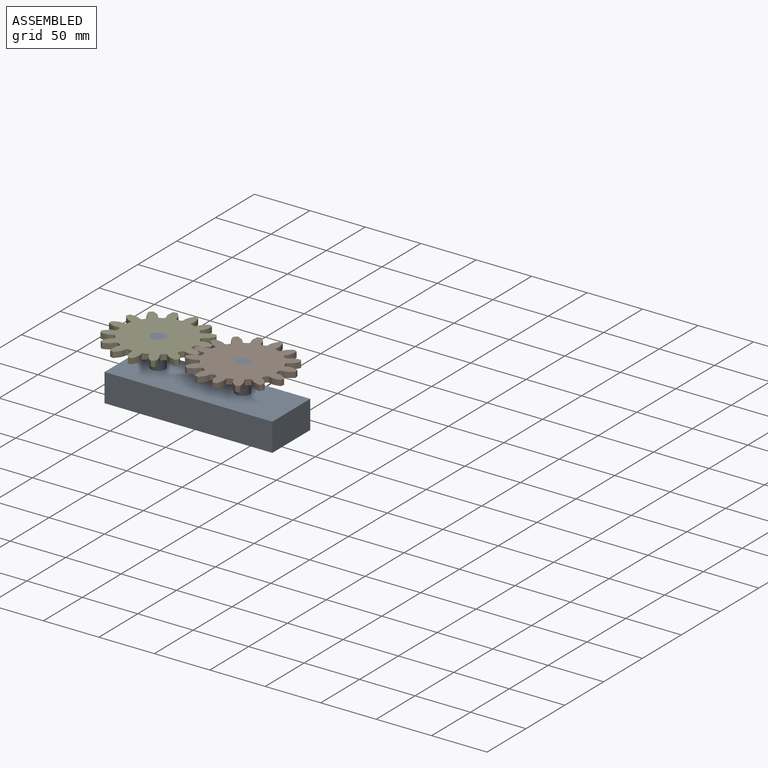
[diagram: assembled view]
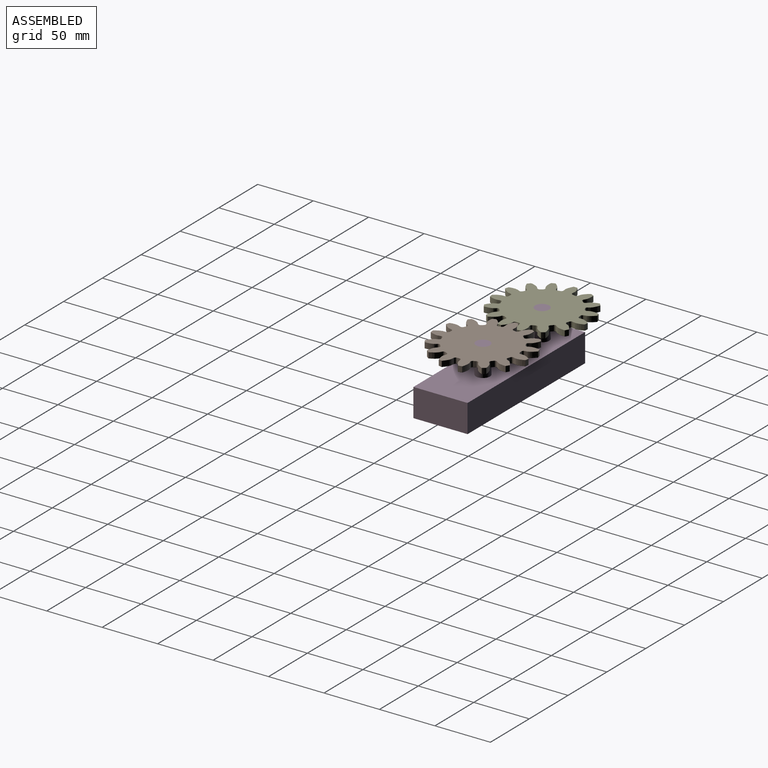
[diagram: assembled view, second angle]
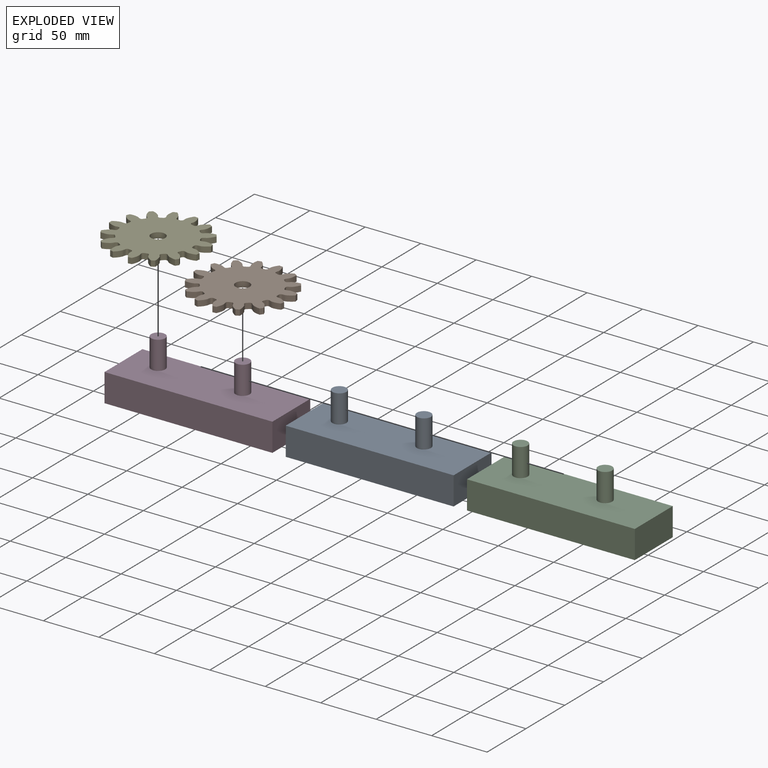
[diagram: exploded view]
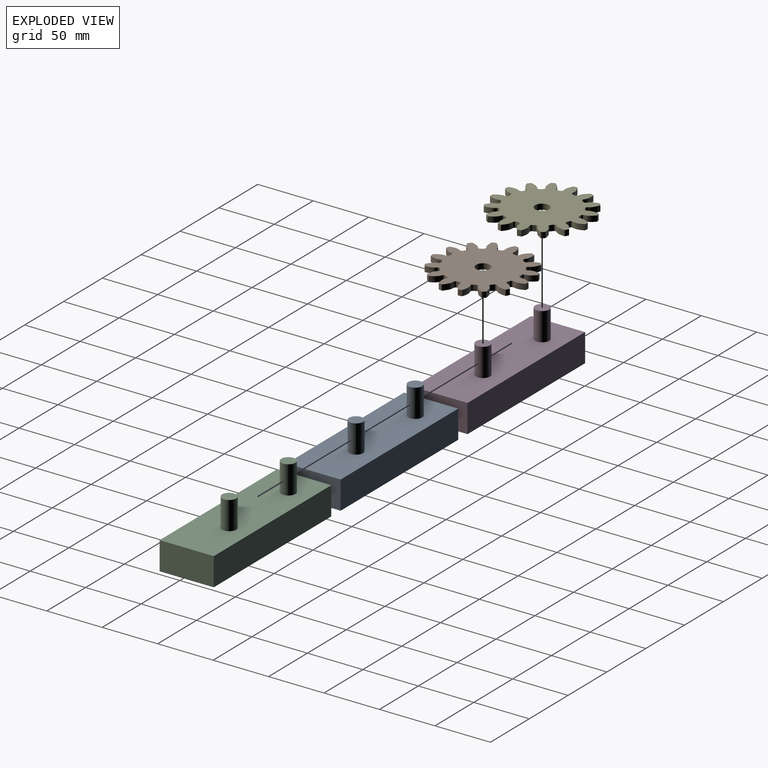
[diagram: exploded view, second angle]
ASSEMBLY  parts=5 mates=2
PART A: 10 faces, bbox 151.4x48.8x50.8 mm
  f0: plane 48.82x25.4mm, normal (-1,0,0), area 1239.9mm2, adj f1,f3,f4,f5
  f1: plane 151.35x25.4mm, normal (0,-1,0), area 3844.3mm2, adj f0,f2,f4,f5
  f2: plane 48.82x25.4mm, normal (1,0,0), area 1239.9mm2, adj f1,f3,f4,f5
  f3: plane 151.35x25.4mm, normal (0,1,0), area 3844.3mm2, adj f0,f2,f4,f5
  f4: plane 151.35x48.82mm, normal (0,0,1), area 7135mm2, adj f0,f1,f2,f3,f6,f8
  f5: plane 151.35x48.82mm, normal (0,0,-1), area 7388.4mm2, adj f0,f1,f2,f3
  f6: cylinder r=6.35mm len=25.4mm, axis (0,0,-1), area 1013.4mm2, adj f4,f7
  f7: plane 12.7x12.7mm, normal (0,0,1), area 126.7mm2, adj f6
  f8: cylinder r=6.35mm len=25.4mm, axis (0,0,-1), area 1013.4mm2, adj f4,f9
  f9: plane 12.7x12.7mm, normal (0,0,1), area 126.7mm2, adj f8
PART B: 93 faces, bbox 85.8x5.1x86.3 mm
  f0: extruded ~9.09x5.08mm, area 52.5mm2, adj f60,f61,f62,f63
  f1: cylinder r=31.75mm len=5.08mm, axis (0,1,0), area 10.7mm2, adj f61,f62,f63,f64
  f2: extruded ~9.09x5.08mm, area 52.5mm2, adj f3,f61,f62,f64
  f3: cylinder r=43.18mm len=5.08mm, axis (0,1,0), area 16.9mm2, adj f2,f4,f61,f62
  f4: extruded ~10.07x5.08mm, area 52.5mm2, adj f3,f61,f62,f65
  f5: cylinder r=31.75mm len=5.08mm, axis (0,1,0), area 10.7mm2, adj f61,f62,f65,f66
  f6: extruded ~7.66x6.54mm, area 52.5mm2, adj f7,f61,f62,f66
  f7: cylinder r=43.18mm len=5.08mm, axis (0,1,0), area 16.9mm2, adj f6,f8,f61,f62
  f8: extruded ~9.3x5.08mm, area 52.5mm2, adj f7,f61,f62,f67
  f9: cylinder r=31.75mm len=5.08mm, axis (0,1,0), area 10.7mm2, adj f61,f62,f67,f68
  f10: extruded ~9.65x5.08mm, area 52.5mm2, adj f11,f61,f62,f68
  f11: cylinder r=43.18mm len=5.08mm, axis (0,1,0), area 16.9mm2, adj f10,f12,f61,f62
  f12: extruded ~7.3x6.93mm, area 52.5mm2, adj f11,f61,f62,f69
  f13: cylinder r=31.75mm len=5.08mm, axis (0,1,0), area 10.7mm2, adj f61,f62,f69,f70
  f14: extruded ~9.98x5.08mm, area 52.5mm2, adj f15,f61,f62,f70
  f15: cylinder r=43.18mm len=5.08mm, axis (0,1,0), area 16.9mm2, adj f14,f16,f61,f62
  f16: extruded ~9.49x5.08mm, area 52.5mm2, adj f15,f61,f62,f71
  f17: cylinder r=31.75mm len=5.08mm, axis (0,1,0), area 10.7mm2, adj f61,f62,f71,f72
  f18: extruded ~8.58x5.26mm, area 52.5mm2, adj f19,f61,f62,f72
  f19: cylinder r=43.18mm len=5.08mm, axis (0,1,0), area 16.9mm2, adj f18,f20,f61,f62
  f20: extruded ~10.04x5.08mm, area 52.5mm2, adj f19,f61,f62,f73
  f21: cylinder r=31.75mm len=5.08mm, axis (0,1,0), area 10.7mm2, adj f61,f62,f73,f74
  f22: extruded ~8.3x5.7mm, area 52.5mm2, adj f23,f61,f62,f74
  f23: cylinder r=43.18mm len=5.08mm, axis (0,1,0), area 16.9mm2, adj f22,f24,f61,f62
  f24: extruded ~8.85x5.08mm, area 52.5mm2, adj f23,f61,f62,f75
  f25: cylinder r=31.75mm len=5.08mm, axis (0,1,0), area 10.7mm2, adj f61,f62,f75,f76
  f26: extruded ~9.9x5.08mm, area 52.5mm2, adj f27,f61,f62,f76
  f27: cylinder r=43.18mm len=5.08mm, axis (0,1,0), area 16.9mm2, adj f26,f28,f61,f62
  f28: extruded ~7.99x6.13mm, area 52.5mm2, adj f27,f61,f62,f77
  f29: cylinder r=31.75mm len=5.08mm, axis (0,1,0), area 10.7mm2, adj f61,f62,f77,f78
  f30: extruded ~9.79x5.08mm, area 52.5mm2, adj f31,f61,f62,f78
  f31: cylinder r=43.18mm len=5.08mm, axis (0,1,0), area 16.9mm2, adj f30,f32,f61,f62
  f32: extruded ~9.79x5.08mm, area 52.5mm2, adj f31,f61,f62,f79
  f33: cylinder r=31.75mm len=5.08mm, axis (0,1,0), area 10.7mm2, adj f61,f62,f79,f80
  f34: extruded ~7.99x6.13mm, area 52.5mm2, adj f35,f61,f62,f80
  f35: cylinder r=43.18mm len=5.08mm, axis (0,1,0), area 16.9mm2, adj f34,f36,f61,f62
  f36: extruded ~9.9x5.08mm, area 52.5mm2, adj f35,f61,f62,f81
  f37: cylinder r=31.75mm len=5.08mm, axis (0,1,0), area 10.7mm2, adj f61,f62,f81,f82
  f38: extruded ~8.85x5.08mm, area 52.5mm2, adj f39,f61,f62,f82
  f39: cylinder r=43.18mm len=5.08mm, axis (0,1,0), area 16.9mm2, adj f38,f40,f61,f62
  f40: extruded ~8.3x5.7mm, area 52.5mm2, adj f39,f61,f62,f83
  f41: cylinder r=31.75mm len=5.08mm, axis (0,1,0), area 10.7mm2, adj f61,f62,f83,f84
  f42: extruded ~10.04x5.08mm, area 52.5mm2, adj f43,f61,f62,f84
  f43: cylinder r=43.18mm len=5.08mm, axis (0,1,0), area 16.9mm2, adj f42,f44,f61,f62
  f44: extruded ~8.58x5.26mm, area 52.5mm2, adj f43,f61,f62,f85
  f45: cylinder r=31.75mm len=5.08mm, axis (0,1,0), area 10.7mm2, adj f61,f62,f85,f86
  f46: extruded ~9.49x5.08mm, area 52.5mm2, adj f47,f61,f62,f86
  f47: cylinder r=43.18mm len=5.08mm, axis (0,1,0), area 16.9mm2, adj f46,f48,f61,f62
  f48: extruded ~9.98x5.08mm, area 52.5mm2, adj f47,f61,f62,f87
  f49: cylinder r=31.75mm len=5.08mm, axis (0,1,0), area 10.7mm2, adj f61,f62,f87,f88
  f50: extruded ~7.3x6.93mm, area 52.5mm2, adj f51,f61,f62,f88
  f51: cylinder r=43.18mm len=5.08mm, axis (0,1,0), area 16.9mm2, adj f50,f52,f61,f62
  f52: extruded ~9.65x5.08mm, area 52.5mm2, adj f51,f61,f62,f89
  f53: cylinder r=31.75mm len=5.08mm, axis (0,1,0), area 10.7mm2, adj f61,f62,f89,f90
  f54: extruded ~9.3x5.08mm, area 52.5mm2, adj f55,f61,f62,f90
  f55: cylinder r=43.18mm len=5.08mm, axis (0,1,0), area 16.9mm2, adj f54,f56,f61,f62
  f56: extruded ~7.66x6.54mm, area 52.5mm2, adj f55,f61,f62,f91
  f57: cylinder r=31.75mm len=5.08mm, axis (0,1,0), area 10.7mm2, adj f61,f62,f91,f92
  f58: extruded ~10.07x5.08mm, area 52.5mm2, adj f60,f61,f62,f92
  f59: cylinder r=6.35mm len=12.7mm, axis (0,1,0), area 202.7mm2, adj f61,f62
  f60: cylinder r=43.18mm len=5.08mm, axis (0,1,0), area 16.9mm2, adj f0,f58,f61,f62
  f61: plane 86.31x85.84mm, normal (0,-1,0), area 4297.6mm2, adj f0,f1,f2,f3,f4,f5,f6,f7
  f62: plane 86.31x85.84mm, normal (0,1,0), area 4297.6mm2, adj f0,f1,f2,f3,f4,f5,f6,f7
  f63: cylinder r=1.9mm len=5.08mm, axis (0,1,0), area 14.6mm2, adj f0,f1,f61,f62
  f64: cylinder r=1.9mm len=5.08mm, axis (0,1,0), area 14.6mm2, adj f1,f2,f61,f62
  f65: cylinder r=1.9mm len=5.08mm, axis (0,1,0), area 14.6mm2, adj f4,f5,f61,f62
  f66: cylinder r=1.9mm len=5.08mm, axis (0,1,0), area 14.6mm2, adj f5,f6,f61,f62
  f67: cylinder r=1.9mm len=5.08mm, axis (0,1,0), area 14.6mm2, adj f8,f9,f61,f62
  f68: cylinder r=1.9mm len=5.08mm, axis (0,1,0), area 14.6mm2, adj f9,f10,f61,f62
  f69: cylinder r=1.9mm len=5.08mm, axis (0,1,0), area 14.6mm2, adj f12,f13,f61,f62
  f70: cylinder r=1.9mm len=5.08mm, axis (0,1,0), area 14.6mm2, adj f13,f14,f61,f62
  f71: cylinder r=1.9mm len=5.08mm, axis (0,1,0), area 14.6mm2, adj f16,f17,f61,f62
  f72: cylinder r=1.9mm len=5.08mm, axis (0,1,0), area 14.6mm2, adj f17,f18,f61,f62
  f73: cylinder r=1.9mm len=5.08mm, axis (0,1,0), area 14.6mm2, adj f20,f21,f61,f62
  f74: cylinder r=1.9mm len=5.08mm, axis (0,1,0), area 14.6mm2, adj f21,f22,f61,f62
  f75: cylinder r=1.9mm len=5.08mm, axis (0,1,0), area 14.6mm2, adj f24,f25,f61,f62
  f76: cylinder r=1.9mm len=5.08mm, axis (0,1,0), area 14.6mm2, adj f25,f26,f61,f62
  f77: cylinder r=1.9mm len=5.08mm, axis (0,1,0), area 14.6mm2, adj f28,f29,f61,f62
  f78: cylinder r=1.9mm len=5.08mm, axis (0,1,0), area 14.6mm2, adj f29,f30,f61,f62
  f79: cylinder r=1.9mm len=5.08mm, axis (0,1,0), area 14.6mm2, adj f32,f33,f61,f62
  f80: cylinder r=1.9mm len=5.08mm, axis (0,1,0), area 14.6mm2, adj f33,f34,f61,f62
  f81: cylinder r=1.9mm len=5.08mm, axis (0,1,0), area 14.6mm2, adj f36,f37,f61,f62
  f82: cylinder r=1.9mm len=5.08mm, axis (0,1,0), area 14.6mm2, adj f37,f38,f61,f62
  f83: cylinder r=1.9mm len=5.08mm, axis (0,1,0), area 14.6mm2, adj f40,f41,f61,f62
  f84: cylinder r=1.9mm len=5.08mm, axis (0,1,0), area 14.6mm2, adj f41,f42,f61,f62
  f85: cylinder r=1.9mm len=5.08mm, axis (0,1,0), area 14.6mm2, adj f44,f45,f61,f62
  f86: cylinder r=1.9mm len=5.08mm, axis (0,1,0), area 14.6mm2, adj f45,f46,f61,f62
  f87: cylinder r=1.9mm len=5.08mm, axis (0,1,0), area 14.6mm2, adj f48,f49,f61,f62
  f88: cylinder r=1.9mm len=5.08mm, axis (0,1,0), area 14.6mm2, adj f49,f50,f61,f62
  f89: cylinder r=1.9mm len=5.08mm, axis (0,1,0), area 14.6mm2, adj f52,f53,f61,f62
  f90: cylinder r=1.9mm len=5.08mm, axis (0,1,0), area 14.6mm2, adj f53,f54,f61,f62
  f91: cylinder r=1.9mm len=5.08mm, axis (0,1,0), area 14.6mm2, adj f56,f57,f61,f62
  f92: cylinder r=1.9mm len=5.08mm, axis (0,1,0), area 14.6mm2, adj f57,f58,f61,f62
PART C: same geometry as A
PART D: same geometry as A
PART E: same geometry as B
PLACE A t=(-3.66,11.69,-13.88)mm
PLACE B rot(axis=(-1,0,0),90deg) t=(26.38,11.69,31.84)mm
PLACE C t=(-3.66,11.69,-13.88)mm
PLACE D t=(-3.66,11.69,-13.88)mm
PLACE E rot(axis=(-1,0,0),90deg) t=(-49.82,11.69,31.84)mm
MATE revolute B.f3 <-> D.f6  axis (0,0,1) through (26.38,11.69,36.92)mm
MATE revolute E.f3 <-> D.f8  axis (0,0,1) through (-49.82,11.69,36.92)mm
